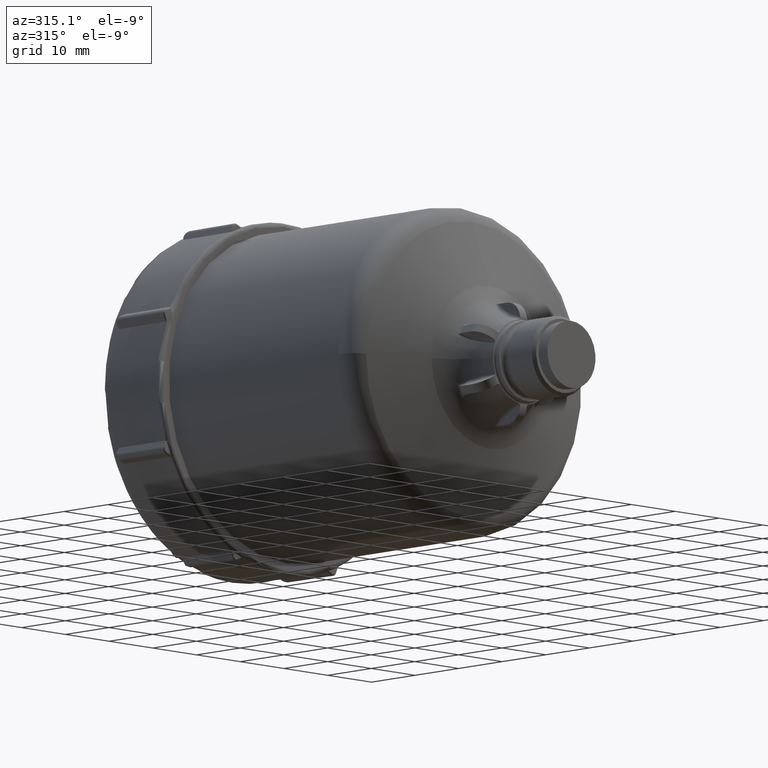
[diagram: clean part render]
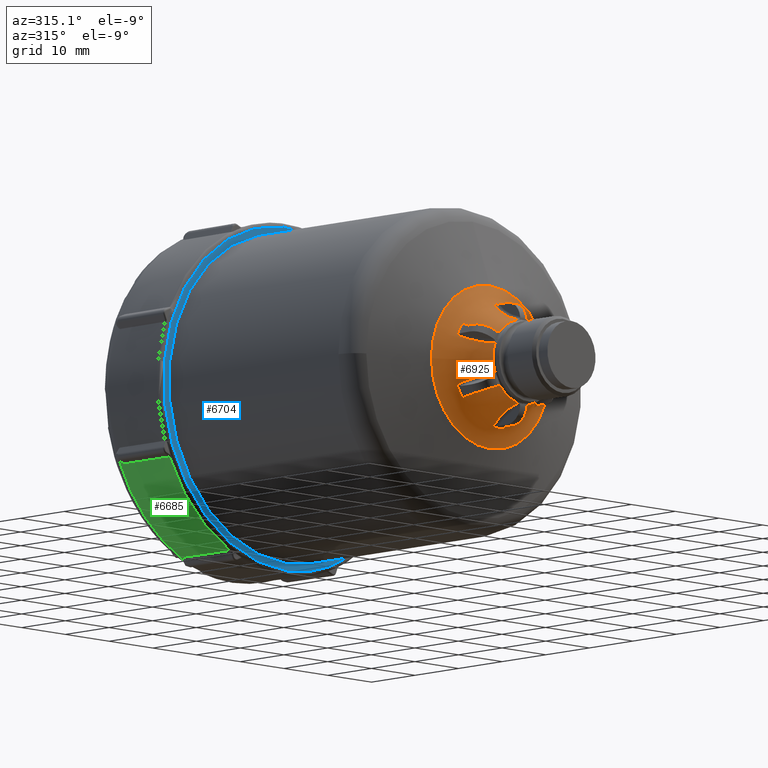
[diagram: same view with three faces highlighted in distinct colors, each labeled with its STEP entity id]
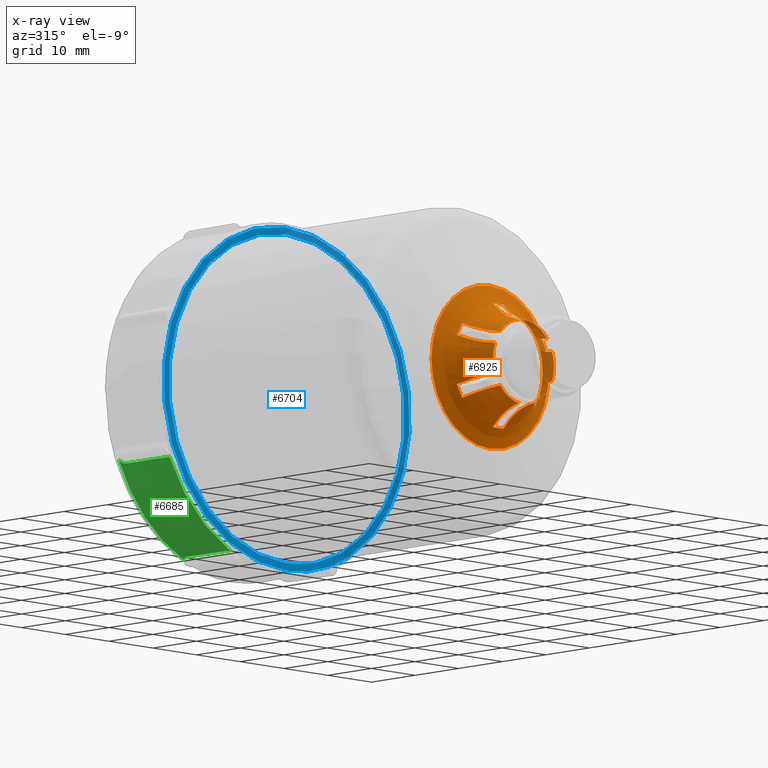
[diagram: x-ray of the same camera — body ghosted, the three highlighted faces saturated]
A machine part, auxiliary view with three faces highlighted in distinct colors.
The next image is the same camera in x-ray (body ghosted, the three faces saturated) — at least one of them is partly hidden behind the body in this view.
Their STEP definitions:

[orange] entity #6925 — the highlighted toroidal blend (fillet) surface has major radius 16.8 mm and minor (blend) radius 10 mm.
#205=TOROIDAL_SURFACE('',#7551,16.8,10.);
#1412=B_SPLINE_CURVE_WITH_KNOTS('',3,(#14276,#14277,#14278,#14279),
 .UNSPECIFIED.,.F.,.F.,(4,4),(0.72171963836938,1.3708608564734),
 .UNSPECIFIED.);
#1417=B_SPLINE_CURVE_WITH_KNOTS('',3,(#14332,#14333,#14334,#14335),
 .UNSPECIFIED.,.F.,.F.,(4,4),(1.40132811834479,1.65163070993467),
 .UNSPECIFIED.);
#1420=B_SPLINE_CURVE_WITH_KNOTS('',3,(#14378,#14379,#14380,#14381),
 .UNSPECIFIED.,.F.,.F.,(4,4),(0.0433594886896026,0.691742462990018),
 .UNSPECIFIED.);
#1424=B_SPLINE_CURVE_WITH_KNOTS('',3,(#14426,#14427,#14428,#14429),
 .UNSPECIFIED.,.F.,.F.,(4,4),(0.720556994780728,1.36972998881647),
 .UNSPECIFIED.);
#1425=B_SPLINE_CURVE_WITH_KNOTS('',3,(#14431,#14432,#14433,#14434),
 .UNSPECIFIED.,.F.,.F.,(4,4),(1.40008387247382,1.65038676106034),
 .UNSPECIFIED.);
#1426=B_SPLINE_CURVE_WITH_KNOTS('',3,(#14436,#14437,#14438,#14439),
 .UNSPECIFIED.,.F.,.F.,(4,4),(0.0420745384724536,0.69047534231398),
 .UNSPECIFIED.);
#1427=B_SPLINE_CURVE_WITH_KNOTS('',3,(#14443,#14444,#14445,#14446),
 .UNSPECIFIED.,.F.,.F.,(4,4),(0.387198978717541,1.03634029096583),
 .UNSPECIFIED.);
#1428=B_SPLINE_CURVE_WITH_KNOTS('',3,(#14448,#14449,#14450,#14451),
 .UNSPECIFIED.,.F.,.F.,(4,4),(1.28664971007705,1.53695230254327),
 .UNSPECIFIED.);
#1429=B_SPLINE_CURVE_WITH_KNOTS('',3,(#14453,#14454,#14455,#14456),
 .UNSPECIFIED.,.F.,.F.,(4,4),(0.0433556964037664,0.691738723335341),
 .UNSPECIFIED.);
#1430=B_SPLINE_CURVE_WITH_KNOTS('',3,(#14460,#14461,#14462,#14463),
 .UNSPECIFIED.,.F.,.F.,(4,4),(0.721716206720734,1.37085751896912),
 .UNSPECIFIED.);
#1431=B_SPLINE_CURVE_WITH_KNOTS('',3,(#14465,#14466,#14467,#14468),
 .UNSPECIFIED.,.F.,.F.,(4,4),(1.4013244469248,1.65162703939103),
 .UNSPECIFIED.);
#1432=B_SPLINE_CURVE_WITH_KNOTS('',3,(#14470,#14471,#14472,#14473),
 .UNSPECIFIED.,.F.,.F.,(4,4),(0.0433556964036399,0.691738723335343),
 .UNSPECIFIED.);
#1433=B_SPLINE_CURVE_WITH_KNOTS('',3,(#14477,#14478,#14479,#14480),
 .UNSPECIFIED.,.F.,.F.,(4,4),(0.721719628301175,1.37086084668141),
 .UNSPECIFIED.);
#1434=B_SPLINE_CURVE_WITH_KNOTS('',3,(#14482,#14483,#14484,#14485),
 .UNSPECIFIED.,.F.,.F.,(4,4),(1.40132810757312,1.65163069916557),
 .UNSPECIFIED.);
#1435=B_SPLINE_CURVE_WITH_KNOTS('',3,(#14487,#14488,#14489,#14490),
 .UNSPECIFIED.,.F.,.F.,(4,4),(0.0433594775633153,0.691742452018149),
 .UNSPECIFIED.);
#1436=B_SPLINE_CURVE_WITH_KNOTS('',3,(#14494,#14495,#14496,#14497),
 .UNSPECIFIED.,.F.,.F.,(4,4),(0.387198972598689,1.03634019070261),
 .UNSPECIFIED.);
#1437=B_SPLINE_CURVE_WITH_KNOTS('',3,(#14499,#14500,#14501,#14502),
 .UNSPECIFIED.,.F.,.F.,(4,4),(1.28664972775729,1.53695231934717),
 .UNSPECIFIED.);
#1438=B_SPLINE_CURVE_WITH_KNOTS('',3,(#14504,#14505,#14506,#14507),
 .UNSPECIFIED.,.F.,.F.,(4,4),(0.0433594886897279,0.691742462990016),
 .UNSPECIFIED.);
#1869=FACE_OUTER_BOUND('',#2269,.T.);
#2269=EDGE_LOOP('',(#6070,#6071,#6072,#6073,#6074,#6075,#6076,#6077,#6078,
#6079,#6080,#6081,#6082,#6083,#6084,#6085,#6086,#6087,#6088,#6089,#6090,
#6091,#6092,#6093,#6094,#6095,#6096,#6097,#6098,#6099));
#2665=CIRCLE('',#7552,6.9455593766059);
#2666=CIRCLE('',#7553,10.);
#2667=CIRCLE('',#7554,13.3797985667433);
#2668=CIRCLE('',#7555,13.3797985667433);
#2669=CIRCLE('',#7556,13.3797985667433);
#2670=CIRCLE('',#7557,6.9455593766059);
#2671=CIRCLE('',#7558,6.9455593766059);
#2672=CIRCLE('',#7559,6.9455593766059);
#2673=CIRCLE('',#7560,6.9455593766059);
#2674=CIRCLE('',#7561,6.9455593766059);
#2675=CIRCLE('',#7562,6.9455593766059);
#3262=VERTEX_POINT('',#14266);
#3263=VERTEX_POINT('',#14275);
#3267=VERTEX_POINT('',#14323);
#3268=VERTEX_POINT('',#14360);
#3272=VERTEX_POINT('',#14414);
#3273=VERTEX_POINT('',#14416);
#3274=VERTEX_POINT('',#14418);
#3275=VERTEX_POINT('',#14420);
#3276=VERTEX_POINT('',#14423);
#3277=VERTEX_POINT('',#14425);
#3278=VERTEX_POINT('',#14430);
#3279=VERTEX_POINT('',#14435);
#3280=VERTEX_POINT('',#14440);
#3281=VERTEX_POINT('',#14442);
#3282=VERTEX_POINT('',#14447);
#3283=VERTEX_POINT('',#14452);
#3284=VERTEX_POINT('',#14457);
#3285=VERTEX_POINT('',#14459);
#3286=VERTEX_POINT('',#14464);
#3287=VERTEX_POINT('',#14469);
#3288=VERTEX_POINT('',#14474);
#3289=VERTEX_POINT('',#14476);
#3290=VERTEX_POINT('',#14481);
#3291=VERTEX_POINT('',#14486);
#3292=VERTEX_POINT('',#14491);
#3293=VERTEX_POINT('',#14493);
#3294=VERTEX_POINT('',#14498);
#3295=VERTEX_POINT('',#14503);
#4222=EDGE_CURVE('',#3262,#3263,#1412,.T.);
#4227=EDGE_CURVE('',#3267,#3262,#1417,.T.);
#4230=EDGE_CURVE('',#3268,#3267,#1420,.T.);
#4234=EDGE_CURVE('',#3268,#3272,#2665,.T.);
#4235=EDGE_CURVE('',#3272,#3273,#2666,.T.);
#4236=EDGE_CURVE('',#3274,#3273,#2667,.T.);
#4237=EDGE_CURVE('',#3275,#3274,#2668,.T.);
#4238=EDGE_CURVE('',#3273,#3275,#2669,.T.);
#4239=EDGE_CURVE('',#3272,#3276,#2670,.T.);
#4240=EDGE_CURVE('',#3277,#3276,#1424,.T.);
#4241=EDGE_CURVE('',#3278,#3277,#1425,.T.);
#4242=EDGE_CURVE('',#3279,#3278,#1426,.T.);
#4243=EDGE_CURVE('',#3279,#3280,#2671,.T.);
#4244=EDGE_CURVE('',#3281,#3280,#1427,.T.);
#4245=EDGE_CURVE('',#3282,#3281,#1428,.T.);
#4246=EDGE_CURVE('',#3283,#3282,#1429,.T.);
#4247=EDGE_CURVE('',#3283,#3284,#2672,.T.);
#4248=EDGE_CURVE('',#3285,#3284,#1430,.T.);
#4249=EDGE_CURVE('',#3286,#3285,#1431,.T.);
#4250=EDGE_CURVE('',#3287,#3286,#1432,.T.);
#4251=EDGE_CURVE('',#3287,#3288,#2673,.T.);
#4252=EDGE_CURVE('',#3289,#3288,#1433,.T.);
#4253=EDGE_CURVE('',#3290,#3289,#1434,.T.);
#4254=EDGE_CURVE('',#3291,#3290,#1435,.T.);
#4255=EDGE_CURVE('',#3291,#3292,#2674,.T.);
#4256=EDGE_CURVE('',#3293,#3292,#1436,.T.);
#4257=EDGE_CURVE('',#3294,#3293,#1437,.T.);
#4258=EDGE_CURVE('',#3295,#3294,#1438,.T.);
#4259=EDGE_CURVE('',#3295,#3263,#2675,.T.);
#6070=ORIENTED_EDGE('',*,*,#4222,.F.);
#6071=ORIENTED_EDGE('',*,*,#4227,.F.);
#6072=ORIENTED_EDGE('',*,*,#4230,.F.);
#6073=ORIENTED_EDGE('',*,*,#4234,.T.);
#6074=ORIENTED_EDGE('',*,*,#4235,.T.);
#6075=ORIENTED_EDGE('',*,*,#4236,.F.);
#6076=ORIENTED_EDGE('',*,*,#4237,.F.);
#6077=ORIENTED_EDGE('',*,*,#4238,.F.);
#6078=ORIENTED_EDGE('',*,*,#4235,.F.);
#6079=ORIENTED_EDGE('',*,*,#4239,.T.);
#6080=ORIENTED_EDGE('',*,*,#4240,.F.);
#6081=ORIENTED_EDGE('',*,*,#4241,.F.);
#6082=ORIENTED_EDGE('',*,*,#4242,.F.);
#6083=ORIENTED_EDGE('',*,*,#4243,.T.);
#6084=ORIENTED_EDGE('',*,*,#4244,.F.);
#6085=ORIENTED_EDGE('',*,*,#4245,.F.);
#6086=ORIENTED_EDGE('',*,*,#4246,.F.);
#6087=ORIENTED_EDGE('',*,*,#4247,.T.);
#6088=ORIENTED_EDGE('',*,*,#4248,.F.);
#6089=ORIENTED_EDGE('',*,*,#4249,.F.);
#6090=ORIENTED_EDGE('',*,*,#4250,.F.);
#6091=ORIENTED_EDGE('',*,*,#4251,.T.);
#6092=ORIENTED_EDGE('',*,*,#4252,.F.);
#6093=ORIENTED_EDGE('',*,*,#4253,.F.);
#6094=ORIENTED_EDGE('',*,*,#4254,.F.);
#6095=ORIENTED_EDGE('',*,*,#4255,.T.);
#6096=ORIENTED_EDGE('',*,*,#4256,.F.);
#6097=ORIENTED_EDGE('',*,*,#4257,.F.);
#6098=ORIENTED_EDGE('',*,*,#4258,.F.);
#6099=ORIENTED_EDGE('',*,*,#4259,.T.);
#6925=ADVANCED_FACE('',(#1869),#205,.F.);
#7551=AXIS2_PLACEMENT_3D('',#14413,#9003,#9004);
#7552=AXIS2_PLACEMENT_3D('',#14415,#9005,#9006);
#7553=AXIS2_PLACEMENT_3D('',#14417,#9007,#9008);
#7554=AXIS2_PLACEMENT_3D('',#14419,#9009,#9010);
#7555=AXIS2_PLACEMENT_3D('',#14421,#9011,#9012);
#7556=AXIS2_PLACEMENT_3D('',#14422,#9013,#9014);
#7557=AXIS2_PLACEMENT_3D('',#14424,#9015,#9016);
#7558=AXIS2_PLACEMENT_3D('',#14441,#9017,#9018);
#7559=AXIS2_PLACEMENT_3D('',#14458,#9019,#9020);
#7560=AXIS2_PLACEMENT_3D('',#14475,#9021,#9022);
#7561=AXIS2_PLACEMENT_3D('',#14492,#9023,#9024);
#7562=AXIS2_PLACEMENT_3D('',#14508,#9025,#9026);
#9003=DIRECTION('center_axis',(-3.67702306362359E-17,1.,2.31725584917124E-17));
#9004=DIRECTION('ref_axis',(1.,0.,0.));
#9005=DIRECTION('center_axis',(-3.67702306362359E-17,1.,2.31725584917124E-17));
#9006=DIRECTION('ref_axis',(1.60944727143586E-33,6.43682180325408E-19,-1.));
#9007=DIRECTION('center_axis',(1.22464679914735E-16,-2.31725584917124E-17,
1.));
#9008=DIRECTION('ref_axis',(-1.,0.,1.22464679914735E-16));
#9009=DIRECTION('center_axis',(-3.67702306362359E-17,1.,2.31725584917124E-17));
#9010=DIRECTION('ref_axis',(1.60944727143586E-33,6.43682180325407E-19,-1.));
#9011=DIRECTION('center_axis',(-3.67702306362359E-17,1.,2.31725584917124E-17));
#9012=DIRECTION('ref_axis',(1.60944727143586E-33,6.43682180325407E-19,-1.));
#9013=DIRECTION('center_axis',(-3.67702306362359E-17,1.,2.31725584917124E-17));
#9014=DIRECTION('ref_axis',(1.60944727143586E-33,6.43682180325407E-19,-1.));
#9015=DIRECTION('center_axis',(-3.67702306362359E-17,1.,2.31725584917124E-17));
#9016=DIRECTION('ref_axis',(1.60944727143586E-33,6.43682180325408E-19,-1.));
#9017=DIRECTION('center_axis',(-3.67702306362359E-17,1.,2.31725584917124E-17));
#9018=DIRECTION('ref_axis',(1.60944727143586E-33,6.43682180325408E-19,-1.));
#9019=DIRECTION('center_axis',(-3.67702306362359E-17,1.,2.31725584917124E-17));
#9020=DIRECTION('ref_axis',(1.60944727143586E-33,6.43682180325408E-19,-1.));
#9021=DIRECTION('center_axis',(-3.67702306362359E-17,1.,2.31725584917124E-17));
#9022=DIRECTION('ref_axis',(1.60944727143586E-33,6.43682180325408E-19,-1.));
#9023=DIRECTION('center_axis',(-3.67702306362359E-17,1.,2.31725584917124E-17));
#9024=DIRECTION('ref_axis',(1.60944727143586E-33,6.43682180325408E-19,-1.));
#9025=DIRECTION('center_axis',(-3.67702306362359E-17,1.,2.31725584917124E-17));
#9026=DIRECTION('ref_axis',(1.60944727143586E-33,6.43682180325408E-19,-1.));
#14266=CARTESIAN_POINT('',(-8.20584797232792,-79.2967757792063,-6.13629618153408));
#14275=CARTESIAN_POINT('',(-5.34588924162633,-85.1500000000013,-4.43421506810571));
#14276=CARTESIAN_POINT('Ctrl Pts',(-8.20584797232792,-79.2967757792063,
-6.13629618153408));
#14277=CARTESIAN_POINT('Ctrl Pts',(-6.71834045693717,-80.7862920282512,
-5.25886800185725));
#14278=CARTESIAN_POINT('Ctrl Pts',(-5.68240323367269,-82.8980763187968,
-4.63701454016447));
#14279=CARTESIAN_POINT('Ctrl Pts',(-5.34588924162652,-85.1500000000013,
-4.43421506810582));
#14323=CARTESIAN_POINT('',(-9.41711236451793,-79.2967757792063,-4.03832471286196));
#14332=CARTESIAN_POINT('Ctrl Pts',(-9.41711236451793,-79.2967757792063,
-4.03832471286196));
#14333=CARTESIAN_POINT('Ctrl Pts',(-9.00730520826354,-79.3864147822177,
-4.73183248672117));
#14334=CARTESIAN_POINT('Ctrl Pts',(-8.6015397440848,-79.3864147822177,-5.43463888663552));
#14335=CARTESIAN_POINT('Ctrl Pts',(-8.20584797232793,-79.2967757792063,
-6.13629618153408));
#14360=CARTESIAN_POINT('',(-6.51308751563635,-85.1500000000017,-2.41256835501341));
#14378=CARTESIAN_POINT('Ctrl Pts',(-6.5130875156366,-85.1500000000017,-2.41256835501354));
#14379=CARTESIAN_POINT('Ctrl Pts',(-6.85657232209051,-82.9007067282209,
-2.60237631614899));
#14380=CARTESIAN_POINT('Ctrl Pts',(-7.91392635393998,-80.7858533439053,
-3.18906969777417));
#14381=CARTESIAN_POINT('Ctrl Pts',(-9.41711236451793,-79.2967757792063,
-4.03832471286195));
#14413=CARTESIAN_POINT('Origin',(3.19349453075708E-15,-86.85,-2.30798682577456E-15));
#14414=CARTESIAN_POINT('',(-6.94555937660589,-85.15,-1.41800777045382E-15));
#14415=CARTESIAN_POINT('Origin',(3.13098513867548E-15,-85.15,-2.26859347633864E-15));
#14416=CARTESIAN_POINT('',(-13.3797985667433,-77.4530737921409,-4.51683254780781E-16));
#14417=CARTESIAN_POINT('Origin',(-16.8,-86.85,-2.50580203207002E-16));
#14418=CARTESIAN_POINT('',(2.84796738682241E-15,-77.4530737921409,-13.3797985667433));
#14419=CARTESIAN_POINT('Origin',(2.84796738682241E-15,-77.4530737921409,
-2.09023600358064E-15));
#14420=CARTESIAN_POINT('',(4.48652013562226E-15,-77.4530737921409,13.3797985667433));
#14421=CARTESIAN_POINT('Origin',(2.84796738682241E-15,-77.4530737921409,
-2.09023600358064E-15));
#14422=CARTESIAN_POINT('Origin',(2.84796738682241E-15,-77.4530737921409,
-2.09023600358064E-15));
#14423=CARTESIAN_POINT('',(-6.51308751563649,-85.1500000000012,2.41256835501349));
#14424=CARTESIAN_POINT('Origin',(3.13098513867548E-15,-85.15,-2.26859347633864E-15));
#14425=CARTESIAN_POINT('',(-9.41711236451792,-79.2967757792063,4.03832471286196));
#14426=CARTESIAN_POINT('Ctrl Pts',(-9.41711236451792,-79.2967757792063,
4.03832471286197));
#14427=CARTESIAN_POINT('Ctrl Pts',(-7.91325413657589,-80.786519252042,3.18868991512342));
#14428=CARTESIAN_POINT('Ctrl Pts',(-6.85695242444579,-82.8982176467418,
2.60258635878181));
#14429=CARTESIAN_POINT('Ctrl Pts',(-6.51308751563667,-85.1500000000012,
2.41256835501359));
#14430=CARTESIAN_POINT('',(-8.20584797232791,-79.2967757792063,6.13629618153408));
#14431=CARTESIAN_POINT('Ctrl Pts',(-8.20584797232792,-79.2967757792063,
6.13629618153409));
#14432=CARTESIAN_POINT('Ctrl Pts',(-8.60153911367881,-79.3864146394071,
5.43464000449793));
#14433=CARTESIAN_POINT('Ctrl Pts',(-9.00730586115779,-79.3864146394071,
4.73183138184237));
#14434=CARTESIAN_POINT('Ctrl Pts',(-9.41711236451792,-79.2967757792063,
4.03832471286196));
#14435=CARTESIAN_POINT('',(-5.34588924162627,-85.1500000000015,4.43421506810568));
#14436=CARTESIAN_POINT('Ctrl Pts',(-5.34588924162649,-85.1500000000015,
4.43421506810581));
#14437=CARTESIAN_POINT('Ctrl Pts',(-5.68198185675936,-82.9008961380975,
4.63676059822571));
#14438=CARTESIAN_POINT('Ctrl Pts',(-6.71873777805255,-80.7858941705924,
5.25910236755922));
#14439=CARTESIAN_POINT('Ctrl Pts',(-8.20584797232791,-79.2967757792063,
6.13629618153409));
#14440=CARTESIAN_POINT('',(-1.16719827401013,-85.1500000000003,6.84678342311952));
#14441=CARTESIAN_POINT('Origin',(3.13098513867548E-15,-85.15,-2.26859347633864E-15));
#14442=CARTESIAN_POINT('',(-1.21126439219,-79.2967757792063,10.174620894396));
#14443=CARTESIAN_POINT('Ctrl Pts',(-1.21126439219,-79.2967757792063,10.1746208943961));
#14444=CARTESIAN_POINT('Ctrl Pts',(-1.19514304900703,-80.7862927010532,
8.44768672786763));
#14445=CARTESIAN_POINT('Ctrl Pts',(-1.17457077130128,-82.8980767350078,
7.23961275238529));
#14446=CARTESIAN_POINT('Ctrl Pts',(-1.16719827401013,-85.1500000000003,
6.84678342311957));
#14447=CARTESIAN_POINT('',(1.21126439219001,-79.2967757792063,10.174620894396));
#14448=CARTESIAN_POINT('Ctrl Pts',(1.21126439219001,-79.2967757792063,10.174620894396));
#14449=CARTESIAN_POINT('Ctrl Pts',(0.40576546796632,-79.3864147817962,10.166471373395));
#14450=CARTESIAN_POINT('Ctrl Pts',(-0.405765467966314,-79.3864147817962,
10.166471373395));
#14451=CARTESIAN_POINT('Ctrl Pts',(-1.21126439219001,-79.2967757792063,
10.174620894396));
#14452=CARTESIAN_POINT('',(1.16719827401014,-85.1500000000003,6.84678342311951));
#14453=CARTESIAN_POINT('Ctrl Pts',(1.16719827401014,-85.1500000000004,6.84678342311957));
#14454=CARTESIAN_POINT('Ctrl Pts',(1.17456215922201,-82.9007072875763,7.23915387431553));
#14455=CARTESIAN_POINT('Ctrl Pts',(1.19514780295402,-80.7858534644218,8.44819597535238));
#14456=CARTESIAN_POINT('Ctrl Pts',(1.21126439219001,-79.2967757792063,10.174620894396));
#14457=CARTESIAN_POINT('',(5.34588924162633,-85.1500000000013,4.43421506810571));
#14458=CARTESIAN_POINT('Origin',(3.13098513867548E-15,-85.15,-2.26859347633864E-15));
#14459=CARTESIAN_POINT('',(8.20584797232793,-79.2967757792063,6.13629618153409));
#14460=CARTESIAN_POINT('Ctrl Pts',(8.20584797232793,-79.2967757792062,6.13629618153409));
#14461=CARTESIAN_POINT('Ctrl Pts',(6.71833978504228,-80.7862927010534,5.25886760553017));
#14462=CARTESIAN_POINT('Ctrl Pts',(5.68240317147651,-82.8980767350085,4.63701450268206));
#14463=CARTESIAN_POINT('Ctrl Pts',(5.34588924162652,-85.1500000000013,4.43421506810582));
#14464=CARTESIAN_POINT('',(9.41711236451792,-79.2967757792063,4.03832471286195));
#14465=CARTESIAN_POINT('Ctrl Pts',(9.41711236451793,-79.2967757792063,4.03832471286196));
#14466=CARTESIAN_POINT('Ctrl Pts',(9.00730521019051,-79.3864147817962,4.73183248346019));
#14467=CARTESIAN_POINT('Ctrl Pts',(8.6015397422242,-79.3864147817962,5.43463888993482));
#14468=CARTESIAN_POINT('Ctrl Pts',(8.20584797232792,-79.2967757792063,6.13629618153409));
#14469=CARTESIAN_POINT('',(6.51308751563636,-85.1500000000016,2.41256835501341));
#14470=CARTESIAN_POINT('Ctrl Pts',(6.51308751563659,-85.1500000000017,2.41256835501354));
#14471=CARTESIAN_POINT('Ctrl Pts',(6.85657223667239,-82.9007072875772,2.60237626894738));
#14472=CARTESIAN_POINT('Ctrl Pts',(7.91392623228132,-80.7858534644221,3.18906962904068));
#14473=CARTESIAN_POINT('Ctrl Pts',(9.41711236451794,-79.2967757792062,4.03832471286196));
#14474=CARTESIAN_POINT('',(6.51308751563646,-85.1500000000013,-2.41256835501347));
#14475=CARTESIAN_POINT('Origin',(3.13098513867548E-15,-85.15,-2.26859347633864E-15));
#14476=CARTESIAN_POINT('',(9.41711236451794,-79.2967757792063,-4.03832471286197));
#14477=CARTESIAN_POINT('Ctrl Pts',(9.41711236451794,-79.2967757792062,-4.03832471286197));
#14478=CARTESIAN_POINT('Ctrl Pts',(7.9134835112334,-80.7862920302252,-3.18881950492591));
#14479=CARTESIAN_POINT('Ctrl Pts',(6.85697400615011,-82.8980763200179,-2.60259828472211));
#14480=CARTESIAN_POINT('Ctrl Pts',(6.51308751563665,-85.1500000000014,-2.41256835501358));
#14481=CARTESIAN_POINT('',(8.20584797232792,-79.2967757792063,-6.13629618153408));
#14482=CARTESIAN_POINT('Ctrl Pts',(8.20584797232792,-79.2967757792063,-6.13629618153409));
#14483=CARTESIAN_POINT('Ctrl Pts',(8.60153974407934,-79.3864147822165,-5.43463888664521));
#14484=CARTESIAN_POINT('Ctrl Pts',(9.00730520826919,-79.3864147822165,-4.73183248671161));
#14485=CARTESIAN_POINT('Ctrl Pts',(9.41711236451793,-79.2967757792063,-4.03832471286197));
#14486=CARTESIAN_POINT('',(5.34588924162623,-85.1500000000017,-4.43421506810565));
#14487=CARTESIAN_POINT('Ctrl Pts',(5.34588924162646,-85.1500000000017,-4.43421506810579));
#14488=CARTESIAN_POINT('Ctrl Pts',(5.68201016079199,-82.9007067298621,-4.63677765559334));
#14489=CARTESIAN_POINT('Ctrl Pts',(6.71877854932846,-80.7858533442589,-5.2591264170958));
#14490=CARTESIAN_POINT('Ctrl Pts',(8.20584797232792,-79.2967757792063,-6.13629618153409));
#14491=CARTESIAN_POINT('',(1.16719827401014,-85.1500000000003,-6.84678342311953));
#14492=CARTESIAN_POINT('Origin',(3.13098513867548E-15,-85.15,-2.26859347633864E-15));
#14493=CARTESIAN_POINT('',(1.21126439219002,-79.2967757792063,-10.174620894396));
#14494=CARTESIAN_POINT('Ctrl Pts',(1.21126439219001,-79.2967757792063,-10.174620894396));
#14495=CARTESIAN_POINT('Ctrl Pts',(1.19514305628891,-80.786292028251,-8.4476875079092));
#14496=CARTESIAN_POINT('Ctrl Pts',(1.17457077266391,-82.8980763187961,-7.23961282498997));
#14497=CARTESIAN_POINT('Ctrl Pts',(1.16719827401014,-85.1500000000004,-6.84678342311958));
#14498=CARTESIAN_POINT('',(-1.21126439219,-79.2967757792063,-10.174620894396));
#14499=CARTESIAN_POINT('Ctrl Pts',(-1.21126439219,-79.2967757792063,-10.1746208943961));
#14500=CARTESIAN_POINT('Ctrl Pts',(-0.405765464178737,-79.3864147822177,
-10.1664713733567));
#14501=CARTESIAN_POINT('Ctrl Pts',(0.405765464178751,-79.3864147822177,
-10.1664713733567));
#14502=CARTESIAN_POINT('Ctrl Pts',(1.21126439219002,-79.2967757792063,-10.1746208943961));
#14503=CARTESIAN_POINT('',(-1.16719827401013,-85.1500000000004,-6.84678342311951));
#14504=CARTESIAN_POINT('Ctrl Pts',(-1.16719827401013,-85.1500000000004,
-6.84678342311957));
#14505=CARTESIAN_POINT('Ctrl Pts',(-1.17456216105326,-82.9007067282201,
-7.23915397189059));
#14506=CARTESIAN_POINT('Ctrl Pts',(-1.19514780425839,-80.785853343905,-8.44819611507859));
#14507=CARTESIAN_POINT('Ctrl Pts',(-1.21126439219,-79.2967757792063,-10.174620894396));
#14508=CARTESIAN_POINT('Origin',(3.13098513867548E-15,-85.15,-2.26859347633864E-15));

[blue] entity #6704 — the highlighted planar face has unit normal (0, -1, -0).
#129=FACE_BOUND('',#2026,.T.);
#1648=FACE_OUTER_BOUND('',#2025,.T.);
#2025=EDGE_LOOP('',(#4906,#4907));
#2026=EDGE_LOOP('',(#4908));
#2415=CIRCLE('',#7134,28.1592185790372);
#2416=CIRCLE('',#7135,28.1592185790372);
#2438=CIRCLE('',#7173,26.9500000000001);
#2863=VERTEX_POINT('',#10339);
#2864=VERTEX_POINT('',#10341);
#2882=VERTEX_POINT('',#10479);
#3608=EDGE_CURVE('',#2863,#2864,#2415,.T.);
#3609=EDGE_CURVE('',#2864,#2863,#2416,.T.);
#3647=EDGE_CURVE('',#2882,#2882,#2438,.T.);
#4906=ORIENTED_EDGE('',*,*,#3609,.F.);
#4907=ORIENTED_EDGE('',*,*,#3608,.F.);
#4908=ORIENTED_EDGE('',*,*,#3647,.F.);
#6483=PLANE('',#7172);
#6704=ADVANCED_FACE('',(#1648,#129),#6483,.T.);
#7134=AXIS2_PLACEMENT_3D('',#10342,#7985,#7986);
#7135=AXIS2_PLACEMENT_3D('',#10343,#7987,#7988);
#7172=AXIS2_PLACEMENT_3D('',#10478,#8071,#8072);
#7173=AXIS2_PLACEMENT_3D('',#10480,#8073,#8074);
#7985=DIRECTION('center_axis',(-3.6814030682041E-17,1.,2.31725584917116E-17));
#7986=DIRECTION('ref_axis',(-0.502332310881175,-3.85296009966207E-17,0.864674649475037));
#7987=DIRECTION('center_axis',(-3.6814030682041E-17,1.,2.31725584917116E-17));
#7988=DIRECTION('ref_axis',(-0.502332310881175,-3.85296009966207E-17,0.864674649475037));
#8071=DIRECTION('center_axis',(3.6814030682041E-17,-1.,-2.31725584917116E-17));
#8072=DIRECTION('ref_axis',(1.11022302462516E-16,2.31725584917116E-17,-1.));
#8073=DIRECTION('center_axis',(0.,-1.,0.));
#8074=DIRECTION('ref_axis',(1.60944727143586E-33,6.43682180325407E-19,-1.));
#10339=CARTESIAN_POINT('',(8.10704132519792E-16,-30.7985074125324,-28.1592185790372));
#10341=CARTESIAN_POINT('',(14.1452853414159,-30.7985074125324,-24.3485624543199));
#10342=CARTESIAN_POINT('Origin',(1.13291254026069E-15,-30.7985074125324,
-1.40905688059544E-15));
#10343=CARTESIAN_POINT('Origin',(1.13291254026069E-15,-30.7985074125324,
-1.40905688059544E-15));
#10478=CARTESIAN_POINT('Origin',(-28.8076770206804,-30.7985074125324,-4.60735151202788E-15));
#10479=CARTESIAN_POINT('',(-2.1679549028915E-15,-30.7985074125324,26.9500000000001));
#10480=CARTESIAN_POINT('Origin',(1.13246822081063E-15,-30.7985074125324,
-1.00913033524368E-15));

[green] entity #6685 — the highlighted conical surface has half-angle 0.5 deg.
#646=LINE('',#10286,#938);
#648=LINE('',#10364,#940);
#938=VECTOR('',#7961,10.);
#940=VECTOR('',#7995,10.);
#1162=CONICAL_SURFACE('',#7137,28.8076770206804,0.00872664625997145);
#1227=B_SPLINE_CURVE_WITH_KNOTS('',3,(#10243,#10244,#10245,#10246,#10247,
#10248,#10249,#10250,#10251,#10252),.UNSPECIFIED.,.F.,.F.,(4,2,2,2,4),(0.,
0.0176420603398641,0.0358691467891009,0.0565501842511026,0.0786366672603285),
 .UNSPECIFIED.);
#1232=B_SPLINE_CURVE_WITH_KNOTS('',3,(#10349,#10350,#10351,#10352,#10353,
#10354,#10355,#10356,#10357,#10358),.UNSPECIFIED.,.F.,.F.,(4,2,2,2,4),(0.,
0.0521829309872825,0.0836142289352614,0.106425446378142,0.129002076238705),
 .UNSPECIFIED.);
#1233=B_SPLINE_CURVE_WITH_KNOTS('',3,(#10360,#10361,#10362,#10363),
 .UNSPECIFIED.,.F.,.F.,(4,4),(0.,0.000616557050349303),.UNSPECIFIED.);
#1629=FACE_OUTER_BOUND('',#2006,.T.);
#2006=EDGE_LOOP('',(#4761,#4762,#4763,#4764,#4765,#4766,#4767,#4768));
#2402=CIRCLE('',#7119,0.467471093241846);
#2411=CIRCLE('',#7130,28.8591919251821);
#2418=CIRCLE('',#7138,28.7600344394821);
#2786=VERTEX_POINT('',#9611);
#2853=VERTEX_POINT('',#10241);
#2854=VERTEX_POINT('',#10242);
#2855=VERTEX_POINT('',#10253);
#2858=VERTEX_POINT('',#10301);
#2865=VERTEX_POINT('',#10346);
#2866=VERTEX_POINT('',#10348);
#2867=VERTEX_POINT('',#10359);
#3587=EDGE_CURVE('',#2853,#2854,#1227,.T.);
#3588=EDGE_CURVE('',#2855,#2853,#2402,.T.);
#3594=EDGE_CURVE('',#2786,#2855,#646,.T.);
#3602=EDGE_CURVE('',#2786,#2858,#2411,.T.);
#3611=EDGE_CURVE('',#2865,#2854,#2418,.T.);
#3612=EDGE_CURVE('',#2865,#2866,#1232,.T.);
#3613=EDGE_CURVE('',#2866,#2867,#1233,.T.);
#3614=EDGE_CURVE('',#2867,#2858,#648,.T.);
#4761=ORIENTED_EDGE('',*,*,#3594,.T.);
#4762=ORIENTED_EDGE('',*,*,#3588,.T.);
#4763=ORIENTED_EDGE('',*,*,#3587,.T.);
#4764=ORIENTED_EDGE('',*,*,#3611,.F.);
#4765=ORIENTED_EDGE('',*,*,#3612,.T.);
#4766=ORIENTED_EDGE('',*,*,#3613,.T.);
#4767=ORIENTED_EDGE('',*,*,#3614,.T.);
#4768=ORIENTED_EDGE('',*,*,#3602,.F.);
#6685=ADVANCED_FACE('',(#1629),#1162,.T.);
#7119=AXIS2_PLACEMENT_3D('',#10254,#7952,#7953);
#7130=AXIS2_PLACEMENT_3D('',#10302,#7977,#7978);
#7137=AXIS2_PLACEMENT_3D('',#10345,#7991,#7992);
#7138=AXIS2_PLACEMENT_3D('',#10347,#7993,#7994);
#7952=DIRECTION('center_axis',(0.38268343236509,3.21476497141458E-15,-0.923879532511287));
#7953=DIRECTION('ref_axis',(-0.923718543071781,0.0186675403560571,-0.382616748355846));
#7961=DIRECTION('',(0.00807583779295628,0.999961832319102,0.00333387896687));
#7977=DIRECTION('center_axis',(3.6814030682041E-17,-1.,-2.31725584917116E-17));
#7978=DIRECTION('ref_axis',(-0.502332310881175,-3.85296009966207E-17,0.864674649475037));
#7991=DIRECTION('center_axis',(3.6814030682041E-17,-1.,-2.31725584917116E-17));
#7992=DIRECTION('ref_axis',(-1.,-3.67702306362367E-17,-1.11022302462516E-16));
#7993=DIRECTION('center_axis',(-3.6814030682041E-17,1.,2.31725584917116E-17));
#7994=DIRECTION('ref_axis',(1.,3.6814030682041E-17,1.11022302462516E-16));
#7995=DIRECTION('',(-0.00333387896687006,-0.999961832319102,-0.00807583779295637));
#9611=CARTESIAN_POINT('',(-26.1077600948751,-30.0923988425324,-12.297878736001));
#10241=CARTESIAN_POINT('',(-26.0245505607591,-19.7836166512325,-12.2634122184995));
#10242=CARTESIAN_POINT('',(-26.3089617656279,-18.7300764011079,-11.6180080812043));
#10243=CARTESIAN_POINT('Ctrl Pts',(-26.0245505607407,-19.7836166506083,
-12.2634122184919));
#10244=CARTESIAN_POINT('Ctrl Pts',(-26.0246852620421,-19.724828801155,-12.2619228184084));
#10245=CARTESIAN_POINT('Ctrl Pts',(-26.0297722199471,-19.6659756339907,
-12.2499391929339));
#10246=CARTESIAN_POINT('Ctrl Pts',(-26.0501263286881,-19.5384938477098,
-12.203974866229));
#10247=CARTESIAN_POINT('Ctrl Pts',(-26.0660205844371,-19.4678528402262,
-12.1686297624692));
#10248=CARTESIAN_POINT('Ctrl Pts',(-26.1140250615747,-19.2938718186565,
-12.0616827414831));
#10249=CARTESIAN_POINT('Ctrl Pts',(-26.1464085550462,-19.1930970187863,
-11.989406693433));
#10250=CARTESIAN_POINT('Ctrl Pts',(-26.2236752748125,-18.9665158950152,
-11.8146882526002));
#10251=CARTESIAN_POINT('Ctrl Pts',(-26.2685191980184,-18.8417285722777,
-11.7120022478054));
#10252=CARTESIAN_POINT('Ctrl Pts',(-26.3089617656279,-18.7300764011079,
-11.6180080812043));
#10253=CARTESIAN_POINT('',(-26.0246715797093,-19.789780877034,-12.2634813087685));
#10254=CARTESIAN_POINT('Origin',(-25.5928827523889,-19.7985074125324,-12.0846095578327));
#10286=CARTESIAN_POINT('',(-26.0661573712296,-24.9410898597832,-12.2807042398208));
#10301=CARTESIAN_POINT('',(-12.2978787360009,-30.0923988425324,-26.1077600948751));
#10302=CARTESIAN_POINT('Origin',(-1.11352821172896E-15,-30.0923988376835,
-3.61314058759357E-15));
#10345=CARTESIAN_POINT('Origin',(8.89603754120445E-16,-24.1893754692882,
-1.25590638406117E-15));
#10346=CARTESIAN_POINT('',(-11.6180080812042,-18.7300764011079,-26.3089617656279));
#10347=CARTESIAN_POINT('Origin',(6.88624950722016E-16,-18.7300764011079,
-4.65148886904796E-15));
#10348=CARTESIAN_POINT('',(-12.2634122184919,-19.7836166506083,-26.0245505607407));
#10349=CARTESIAN_POINT('Ctrl Pts',(-11.6180080812042,-18.7300764011079,
-26.3089617656279));
#10350=CARTESIAN_POINT('Ctrl Pts',(-11.725963024894,-18.8583120596315,-26.2625123393834));
#10351=CARTESIAN_POINT('Ctrl Pts',(-11.8506801860691,-19.0101676757554,
-26.2079047578589));
#10352=CARTESIAN_POINT('Ctrl Pts',(-12.0157744378669,-19.2305262696426,
-26.1345860137357));
#10353=CARTESIAN_POINT('Ctrl Pts',(-12.0844505086798,-19.3273727989329,
-26.1038119899192));
#10354=CARTESIAN_POINT('Ctrl Pts',(-12.1777500461816,-19.4865701951173,
-26.0619188684806));
#10355=CARTESIAN_POINT('Ctrl Pts',(-12.2085064870775,-19.5493281552481,
-26.0481051389285));
#10356=CARTESIAN_POINT('Ctrl Pts',(-12.2508084817206,-19.6703084497982,
-26.0294033193464));
#10357=CARTESIAN_POINT('Ctrl Pts',(-12.2619780693043,-19.7270095995751,
-26.0246802651527));
#10358=CARTESIAN_POINT('Ctrl Pts',(-12.2634122184919,-19.7836166506083,
-26.0245505607407));
#10359=CARTESIAN_POINT('',(-12.2635297436407,-19.789780877034,-26.024554647584));
#10360=CARTESIAN_POINT('Ctrl Pts',(-12.2634122184919,-19.7836166506083,
-26.0245505607407));
#10361=CARTESIAN_POINT('Ctrl Pts',(-12.2634642702423,-19.7856711761204,
-26.0245458531819));
#10362=CARTESIAN_POINT('Ctrl Pts',(-12.2635034505661,-19.7877258684596,
-26.02454721244));
#10363=CARTESIAN_POINT('Ctrl Pts',(-12.2635297436407,-19.789780877034,-26.024554647584));
#10364=CARTESIAN_POINT('',(-12.2807042398127,-24.9410898573588,-26.06615737121));